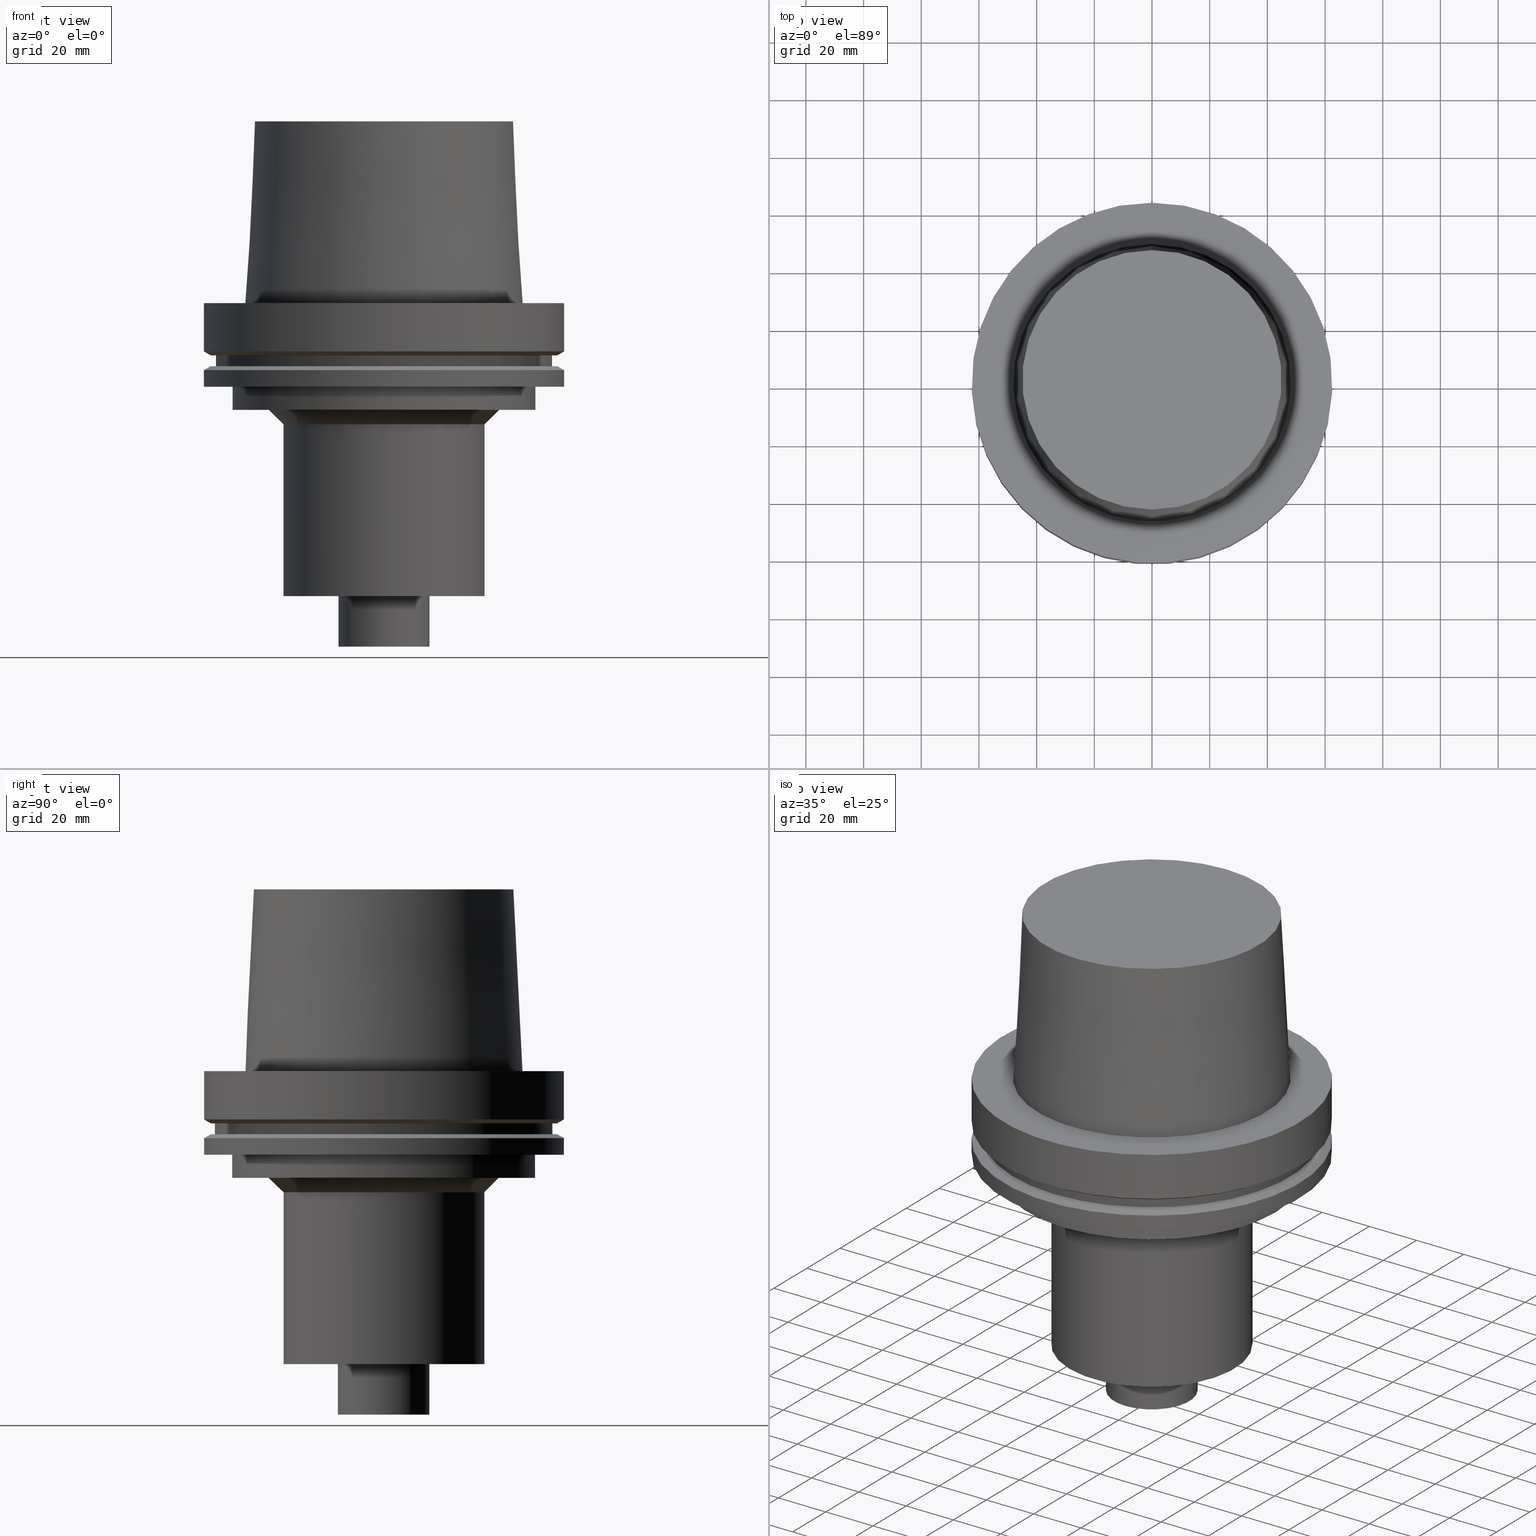
[diagram: canonical four-view strip — front | top / right | iso, engineering-drawing reading convention]
A machine part, canonical four-view strip (front | top / right | iso — engineering-drawing reading convention). The complete STEP part file that produces these views, byte-faithful:
ISO-10303-21;
HEADER;
FILE_DESCRIPTION((''),'1');
FILE_NAME('V:/02_3D_Field-HP\X2\FF71FF6FFF8CFF9F5916\X0\2013/02_Step_Field-HP\X2\FF71FF6FFF8CFF9F5916\X0\2013/HSK-A125-SMC1.250-4.stp','2017-07-11T04:51:26',(''),(''),'Spatial Interop R21 SP3','Kubotek KeyCreator 2011 V10.0.2 (22737)',' ');
FILE_SCHEMA(('automotive_design'));
ENDSEC;
DATA;
#1=MECHANICAL_DESIGN_GEOMETRIC_PRESENTATION_REPRESENTATION(' ',(#10,#11,#12,#13,#14,#15,#16,#17,#18,#19,#20,#21,#22,#23,#24,#25,#26,#27,#28,#29,#30,#31,#32,#33,#34,#35,#36,#37,#38,#39,#40,#41,#42,#43,#44,#45),#6);
#2=PRODUCT_DEFINITION_CONTEXT('',#46,'design');
#3=APPLICATION_PROTOCOL_DEFINITION('INTERNATIONAL STANDARD','automotive_design',1994,#46);
#4=PRODUCT_CATEGORY_RELATIONSHIP('NONE','NONE',#47,#48);
#5=SHAPE_DEFINITION_REPRESENTATION(#49,#50);
#6= (GEOMETRIC_REPRESENTATION_CONTEXT(3)GLOBAL_UNCERTAINTY_ASSIGNED_CONTEXT((#53))GLOBAL_UNIT_ASSIGNED_CONTEXT((#55,#56,#57))REPRESENTATION_CONTEXT('NONE','WORKSPACE'));
#10=STYLED_ITEM('',(#59,#60),#61);
#11=STYLED_ITEM('',(#62,#63),#64);
#12=STYLED_ITEM('',(#65,#66),#67);
#13=STYLED_ITEM('',(#68),#69);
#14=STYLED_ITEM('',(#70),#71);
#15=STYLED_ITEM('',(#72),#73);
#16=STYLED_ITEM('',(#74,#75),#76);
#17=STYLED_ITEM('',(#77),#78);
#18=STYLED_ITEM('',(#79,#80),#81);
#19=STYLED_ITEM('',(#82,#83),#84);
#20=STYLED_ITEM('',(#85),#86);
#21=STYLED_ITEM('',(#87),#88);
#22=STYLED_ITEM('',(#89,#90),#91);
#23=STYLED_ITEM('',(#92,#93),#94);
#24=STYLED_ITEM('',(#95),#96);
#25=STYLED_ITEM('',(#97),#98);
#26=STYLED_ITEM('',(#99),#100);
#27=STYLED_ITEM('',(#101,#102),#103);
#28=STYLED_ITEM('',(#104),#105);
#29=STYLED_ITEM('',(#106,#107),#108);
#30=STYLED_ITEM('',(#109,#110),#111);
#31=STYLED_ITEM('',(#112,#113),#114);
#32=STYLED_ITEM('',(#115),#116);
#33=STYLED_ITEM('',(#117),#118);
#34=STYLED_ITEM('',(#119),#120);
#35=STYLED_ITEM('',(#121,#122),#123);
#36=STYLED_ITEM('',(#124,#125),#126);
#37=STYLED_ITEM('',(#127,#128),#129);
#38=STYLED_ITEM('',(#130,#131),#132);
#39=STYLED_ITEM('',(#133,#134),#135);
#40=STYLED_ITEM('',(#136,#137),#138);
#41=STYLED_ITEM('',(#139),#140);
#42=STYLED_ITEM('',(#141),#142);
#43=STYLED_ITEM('',(#143),#144);
#44=STYLED_ITEM('',(#145),#146);
#45=STYLED_ITEM('',(#147,#148),#149);
#46=APPLICATION_CONTEXT(' ');
#47=PRODUCT_CATEGORY('part','NONE');
#48=PRODUCT_RELATED_PRODUCT_CATEGORY('detail',' ',(#150));
#49=PRODUCT_DEFINITION_SHAPE('NONE','NONE',#151);
#50=ADVANCED_BREP_SHAPE_REPRESENTATION('Unnamed[1]',(#64,#152),#6);
#53=UNCERTAINTY_MEASURE_WITH_UNIT(LENGTH_MEASURE(1.0E-006),#55,'','');
#55= (CONVERSION_BASED_UNIT('MILLIMETRE',#155)LENGTH_UNIT()NAMED_UNIT(#158));
#56= (NAMED_UNIT(#160)PLANE_ANGLE_UNIT()SI_UNIT($,.RADIAN.));
#57= (NAMED_UNIT(#160)SOLID_ANGLE_UNIT()SI_UNIT($,.STERADIAN.));
#59=PRESENTATION_STYLE_ASSIGNMENT((#166));
#60=PRESENTATION_STYLE_ASSIGNMENT((#167));
#61=ADVANCED_FACE('Unnamed[1]',(#168,#169),#170,.T.);
#62=PRESENTATION_STYLE_ASSIGNMENT((#171));
#63=PRESENTATION_STYLE_ASSIGNMENT((#172));
#64=MANIFOLD_SOLID_BREP('Unnamed[1]',#173);
#65=PRESENTATION_STYLE_ASSIGNMENT((#174));
#66=PRESENTATION_STYLE_ASSIGNMENT((#175));
#67=ADVANCED_FACE('Unnamed[1]',(#176,#177),#178,.T.);
#68=PRESENTATION_STYLE_ASSIGNMENT((#179));
#69=EDGE_CURVE('Unnamed[1]',#180,#180,#181,.T.);
#70=PRESENTATION_STYLE_ASSIGNMENT((#182));
#71=EDGE_CURVE('Unnamed[1]',#183,#183,#184,.T.);
#72=PRESENTATION_STYLE_ASSIGNMENT((#185));
#73=EDGE_CURVE('Unnamed[1]',#186,#186,#187,.T.);
#74=PRESENTATION_STYLE_ASSIGNMENT((#188));
#75=PRESENTATION_STYLE_ASSIGNMENT((#189));
#76=ADVANCED_FACE('Unnamed[1]',(#190,#191),#192,.T.);
#77=PRESENTATION_STYLE_ASSIGNMENT((#193));
#78=EDGE_CURVE('Unnamed[1]',#194,#194,#195,.T.);
#79=PRESENTATION_STYLE_ASSIGNMENT((#196));
#80=PRESENTATION_STYLE_ASSIGNMENT((#197));
#81=ADVANCED_FACE('Unnamed[1]',(#198,#199),#200,.T.);
#82=PRESENTATION_STYLE_ASSIGNMENT((#201));
#83=PRESENTATION_STYLE_ASSIGNMENT((#202));
#84=ADVANCED_FACE('Unnamed[1]',(#203,#204),#205,.T.);
#85=PRESENTATION_STYLE_ASSIGNMENT((#206));
#86=EDGE_CURVE('Unnamed[1]',#207,#207,#208,.T.);
#87=PRESENTATION_STYLE_ASSIGNMENT((#209));
#88=EDGE_CURVE('Unnamed[1]',#210,#210,#211,.T.);
#89=PRESENTATION_STYLE_ASSIGNMENT((#212));
#90=PRESENTATION_STYLE_ASSIGNMENT((#213));
#91=ADVANCED_FACE('Unnamed[1]',(#214,#215),#216,.T.);
#92=PRESENTATION_STYLE_ASSIGNMENT((#217));
#93=PRESENTATION_STYLE_ASSIGNMENT((#218));
#94=ADVANCED_FACE('Unnamed[1]',(#219,#220),#221,.T.);
#95=PRESENTATION_STYLE_ASSIGNMENT((#222));
#96=EDGE_CURVE('Unnamed[1]',#223,#223,#224,.T.);
#97=PRESENTATION_STYLE_ASSIGNMENT((#225));
#98=EDGE_CURVE('Unnamed[1]',#226,#226,#227,.T.);
#99=PRESENTATION_STYLE_ASSIGNMENT((#228));
#100=EDGE_CURVE('Unnamed[1]',#229,#229,#230,.T.);
#101=PRESENTATION_STYLE_ASSIGNMENT((#231));
#102=PRESENTATION_STYLE_ASSIGNMENT((#232));
#103=ADVANCED_FACE('Unnamed[1]',(#233),#234,.T.);
#104=PRESENTATION_STYLE_ASSIGNMENT((#235));
#105=EDGE_CURVE('Unnamed[1]',#236,#236,#237,.T.);
#106=PRESENTATION_STYLE_ASSIGNMENT((#238));
#107=PRESENTATION_STYLE_ASSIGNMENT((#239));
#108=ADVANCED_FACE('Unnamed[1]',(#240,#241),#242,.T.);
#109=PRESENTATION_STYLE_ASSIGNMENT((#243));
#110=PRESENTATION_STYLE_ASSIGNMENT((#244));
#111=ADVANCED_FACE('Unnamed[1]',(#245),#246,.T.);
#112=PRESENTATION_STYLE_ASSIGNMENT((#247));
#113=PRESENTATION_STYLE_ASSIGNMENT((#248));
#114=ADVANCED_FACE('Unnamed[1]',(#249,#250),#251,.T.);
#115=PRESENTATION_STYLE_ASSIGNMENT((#252));
#116=EDGE_CURVE('Unnamed[1]',#253,#253,#254,.T.);
#117=PRESENTATION_STYLE_ASSIGNMENT((#255));
#118=EDGE_CURVE('Unnamed[1]',#256,#256,#257,.T.);
#119=PRESENTATION_STYLE_ASSIGNMENT((#258));
#120=EDGE_CURVE('Unnamed[1]',#259,#259,#260,.T.);
#121=PRESENTATION_STYLE_ASSIGNMENT((#261));
#122=PRESENTATION_STYLE_ASSIGNMENT((#262));
#123=ADVANCED_FACE('Unnamed[1]',(#263,#264),#265,.T.);
#124=PRESENTATION_STYLE_ASSIGNMENT((#266));
#125=PRESENTATION_STYLE_ASSIGNMENT((#267));
#126=ADVANCED_FACE('Unnamed[1]',(#268,#269),#270,.T.);
#127=PRESENTATION_STYLE_ASSIGNMENT((#271));
#128=PRESENTATION_STYLE_ASSIGNMENT((#272));
#129=ADVANCED_FACE('Unnamed[1]',(#273,#274),#275,.T.);
#130=PRESENTATION_STYLE_ASSIGNMENT((#276));
#131=PRESENTATION_STYLE_ASSIGNMENT((#277));
#132=ADVANCED_FACE('Unnamed[1]',(#278,#279),#280,.T.);
#133=PRESENTATION_STYLE_ASSIGNMENT((#281));
#134=PRESENTATION_STYLE_ASSIGNMENT((#282));
#135=ADVANCED_FACE('Unnamed[1]',(#283,#284),#285,.T.);
#136=PRESENTATION_STYLE_ASSIGNMENT((#286));
#137=PRESENTATION_STYLE_ASSIGNMENT((#287));
#138=ADVANCED_FACE('Unnamed[1]',(#288,#289),#290,.T.);
#139=PRESENTATION_STYLE_ASSIGNMENT((#291));
#140=EDGE_CURVE('Unnamed[1]',#292,#292,#293,.T.);
#141=PRESENTATION_STYLE_ASSIGNMENT((#294));
#142=EDGE_CURVE('Unnamed[1]',#295,#295,#296,.T.);
#143=PRESENTATION_STYLE_ASSIGNMENT((#297));
#144=EDGE_CURVE('Unnamed[1]',#298,#298,#299,.T.);
#145=PRESENTATION_STYLE_ASSIGNMENT((#300));
#146=EDGE_CURVE('Unnamed[1]',#301,#301,#302,.T.);
#147=PRESENTATION_STYLE_ASSIGNMENT((#303));
#148=PRESENTATION_STYLE_ASSIGNMENT((#304));
#149=ADVANCED_FACE('Unnamed[1]',(#305,#306),#307,.T.);
#150=PRODUCT('Unnamed[1]','Unnamed[1]','PART-Unnamed[1]-DESC',(#308));
#151=PRODUCT_DEFINITION('NONE','NONE',#309,#2);
#152=AXIS2_PLACEMENT_3D('',#310,#311,#312);
#155=LENGTH_MEASURE_WITH_UNIT(LENGTH_MEASURE(1.0),#313);
#158=DIMENSIONAL_EXPONENTS(1.0,0.0,0.0,0.0,0.0,0.0,0.0);
#160=DIMENSIONAL_EXPONENTS(0.0,0.0,0.0,0.0,0.0,0.0,0.0);
#166=SURFACE_STYLE_USAGE(.BOTH.,#314);
#167=CURVE_STYLE('',#315,POSITIVE_LENGTH_MEASURE(1000.0),#316);
#168=FACE_BOUND('',#317,.T.);
#169=FACE_BOUND('',#318,.T.);
#170=CONICAL_SURFACE('',#319,37.4249999999999,0.78539816339748);
#171=SURFACE_STYLE_USAGE(.BOTH.,#320);
#172=CURVE_STYLE('',#321,POSITIVE_LENGTH_MEASURE(1000.0),#322);
#173=CLOSED_SHELL('',(#111,#123,#149,#126,#129,#114,#94,#132,#138,#108,#91,#81,#76,#61,#135,#84,#67,#103));
#174=SURFACE_STYLE_USAGE(.BOTH.,#323);
#175=CURVE_STYLE('',#324,POSITIVE_LENGTH_MEASURE(1000.0),#325);
#176=FACE_BOUND('',#326,.T.);
#177=FACE_BOUND('',#327,.T.);
#178=CYLINDRICAL_SURFACE('',#328,15.8749999999998);
#179=CURVE_STYLE('',#329,POSITIVE_LENGTH_MEASURE(1000.0),#330);
#180=VERTEX_POINT('',#331);
#181=CIRCLE('',#332,58.4999999999998);
#182=CURVE_STYLE('',#333,POSITIVE_LENGTH_MEASURE(1000.0),#334);
#183=VERTEX_POINT('',#335);
#184=CIRCLE('',#336,60.1225952641912);
#185=CURVE_STYLE('',#337,POSITIVE_LENGTH_MEASURE(1000.0),#338);
#186=VERTEX_POINT('',#339);
#187=CIRCLE('',#340,62.5);
#188=SURFACE_STYLE_USAGE(.BOTH.,#341);
#189=CURVE_STYLE('',#342,POSITIVE_LENGTH_MEASURE(1000.0),#343);
#190=FACE_BOUND('',#344,.T.);
#191=FACE_OUTER_BOUND('',#345,.T.);
#192=PLANE('',#346);
#193=CURVE_STYLE('',#347,POSITIVE_LENGTH_MEASURE(1000.0),#348);
#194=VERTEX_POINT('',#349);
#195=CIRCLE('',#350,60.122595264194);
#196=SURFACE_STYLE_USAGE(.BOTH.,#351);
#197=CURVE_STYLE('',#352,POSITIVE_LENGTH_MEASURE(1000.0),#353);
#198=FACE_BOUND('',#354,.T.);
#199=FACE_BOUND('',#355,.T.);
#200=CYLINDRICAL_SURFACE('',#356,52.5);
#201=SURFACE_STYLE_USAGE(.BOTH.,#357);
#202=CURVE_STYLE('',#358,POSITIVE_LENGTH_MEASURE(1000.0),#359);
#203=FACE_BOUND('',#360,.T.);
#204=FACE_OUTER_BOUND('',#361,.T.);
#205=PLANE('',#362);
#206=CURVE_STYLE('',#363,POSITIVE_LENGTH_MEASURE(1000.0),#364);
#207=VERTEX_POINT('',#365);
#208=CIRCLE('',#366,44.9779398797591);
#209=CURVE_STYLE('',#367,POSITIVE_LENGTH_MEASURE(1000.0),#368);
#210=VERTEX_POINT('',#369);
#211=CIRCLE('',#370,62.5000000000002);
#212=SURFACE_STYLE_USAGE(.BOTH.,#371);
#213=CURVE_STYLE('',#372,POSITIVE_LENGTH_MEASURE(1000.0),#373);
#214=FACE_BOUND('',#374,.T.);
#215=FACE_OUTER_BOUND('',#375,.T.);
#216=PLANE('',#376);
#217=SURFACE_STYLE_USAGE(.BOTH.,#377);
#218=CURVE_STYLE('',#378,POSITIVE_LENGTH_MEASURE(1000.0),#379);
#219=FACE_BOUND('',#380,.T.);
#220=FACE_BOUND('',#381,.T.);
#221=CYLINDRICAL_SURFACE('',#382,58.4999999999999);
#222=CURVE_STYLE('',#383,POSITIVE_LENGTH_MEASURE(1000.0),#384);
#223=VERTEX_POINT('',#385);
#224=CIRCLE('',#386,52.4999999999998);
#225=CURVE_STYLE('',#387,POSITIVE_LENGTH_MEASURE(1000.0),#388);
#226=VERTEX_POINT('',#389);
#227=CIRCLE('',#390,58.5);
#228=CURVE_STYLE('',#391,POSITIVE_LENGTH_MEASURE(1000.0),#392);
#229=VERTEX_POINT('',#393);
#230=CIRCLE('',#394,39.9249999999999);
#231=SURFACE_STYLE_USAGE(.BOTH.,#395);
#232=CURVE_STYLE('',#396,POSITIVE_LENGTH_MEASURE(1000.0),#397);
#233=FACE_OUTER_BOUND('',#398,.T.);
#234=PLANE('',#399);
#235=CURVE_STYLE('',#400,POSITIVE_LENGTH_MEASURE(1000.0),#401);
#236=VERTEX_POINT('',#402);
#237=CIRCLE('',#403,15.8749999999997);
#238=SURFACE_STYLE_USAGE(.BOTH.,#404);
#239=CURVE_STYLE('',#405,POSITIVE_LENGTH_MEASURE(1000.0),#406);
#240=FACE_BOUND('',#407,.T.);
#241=FACE_BOUND('',#408,.T.);
#242=CYLINDRICAL_SURFACE('',#409,62.5);
#243=SURFACE_STYLE_USAGE(.BOTH.,#410);
#244=CURVE_STYLE('',#411,POSITIVE_LENGTH_MEASURE(1000.0),#412);
#245=FACE_OUTER_BOUND('',#413,.T.);
#246=PLANE('',#414);
#247=SURFACE_STYLE_USAGE(.BOTH.,#415);
#248=CURVE_STYLE('',#416,POSITIVE_LENGTH_MEASURE(1000.0),#417);
#249=FACE_BOUND('',#418,.T.);
#250=FACE_OUTER_BOUND('',#419,.T.);
#251=PLANE('',#420);
#252=CURVE_STYLE('',#421,POSITIVE_LENGTH_MEASURE(1000.0),#422);
#253=VERTEX_POINT('',#423);
#254=CIRCLE('',#424,48.1342525050097);
#255=CURVE_STYLE('',#425,POSITIVE_LENGTH_MEASURE(1000.0),#426);
#256=VERTEX_POINT('',#427);
#257=CIRCLE('',#428,34.9249999999999);
#258=CURVE_STYLE('',#429,POSITIVE_LENGTH_MEASURE(1000.0),#430);
#259=VERTEX_POINT('',#431);
#260=CIRCLE('',#432,52.5000000000003);
#261=SURFACE_STYLE_USAGE(.BOTH.,#433);
#262=CURVE_STYLE('',#434,POSITIVE_LENGTH_MEASURE(1000.0),#435);
#263=FACE_BOUND('',#436,.T.);
#264=FACE_BOUND('',#437,.T.);
#265=CONICAL_SURFACE('',#438,46.5560961923844,0.0500583457465964);
#266=SURFACE_STYLE_USAGE(.BOTH.,#439);
#267=CURVE_STYLE('',#440,POSITIVE_LENGTH_MEASURE(1000.0),#441);
#268=FACE_BOUND('',#442,.T.);
#269=FACE_BOUND('',#443,.T.);
#270=CYLINDRICAL_SURFACE('',#444,62.5000000000001);
#271=SURFACE_STYLE_USAGE(.BOTH.,#445);
#272=CURVE_STYLE('',#446,POSITIVE_LENGTH_MEASURE(1000.0),#447);
#273=FACE_BOUND('',#448,.T.);
#274=FACE_BOUND('',#449,.T.);
#275=CONICAL_SURFACE('',#450,61.3112976320956,1.04719755119668);
#276=SURFACE_STYLE_USAGE(.BOTH.,#451);
#277=CURVE_STYLE('',#452,POSITIVE_LENGTH_MEASURE(1000.0),#453);
#278=FACE_OUTER_BOUND('',#454,.T.);
#279=FACE_BOUND('',#455,.T.);
#280=PLANE('',#456);
#281=SURFACE_STYLE_USAGE(.BOTH.,#457);
#282=CURVE_STYLE('',#458,POSITIVE_LENGTH_MEASURE(1000.0),#459);
#283=FACE_BOUND('',#460,.T.);
#284=FACE_BOUND('',#461,.T.);
#285=CYLINDRICAL_SURFACE('',#462,34.9249999999999);
#286=SURFACE_STYLE_USAGE(.BOTH.,#463);
#287=CURVE_STYLE('',#464,POSITIVE_LENGTH_MEASURE(1000.0),#465);
#288=FACE_BOUND('',#466,.T.);
#289=FACE_BOUND('',#467,.T.);
#290=CONICAL_SURFACE('',#468,61.311297632097,1.04719755119646);
#291=CURVE_STYLE('',#469,POSITIVE_LENGTH_MEASURE(1000.0),#470);
#292=VERTEX_POINT('',#471);
#293=CIRCLE('',#472,62.5);
#294=CURVE_STYLE('',#473,POSITIVE_LENGTH_MEASURE(1000.0),#474);
#295=VERTEX_POINT('',#475);
#296=CIRCLE('',#476,34.9249999999999);
#297=CURVE_STYLE('',#477,POSITIVE_LENGTH_MEASURE(1000.0),#478);
#298=VERTEX_POINT('',#479);
#299=CIRCLE('',#480,15.8749999999999);
#300=CURVE_STYLE('',#481,POSITIVE_LENGTH_MEASURE(1000.0),#482);
#301=VERTEX_POINT('',#483);
#302=CIRCLE('',#484,62.5);
#303=SURFACE_STYLE_USAGE(.BOTH.,#485);
#304=CURVE_STYLE('',#486,POSITIVE_LENGTH_MEASURE(1000.0),#487);
#305=FACE_OUTER_BOUND('',#488,.T.);
#306=FACE_BOUND('',#489,.T.);
#307=PLANE('',#490);
#308=PRODUCT_CONTEXT('',#46,'mechanical');
#309=PRODUCT_DEFINITION_FORMATION_WITH_SPECIFIED_SOURCE(' ','NONE',#150,.NOT_KNOWN.);
#310=CARTESIAN_POINT('',(0.0,0.0,0.0));
#311=DIRECTION('',(0.0,0.0,1.0));
#312=DIRECTION('',(1.0,0.0,0.0));
#313= (NAMED_UNIT(#158)LENGTH_UNIT()SI_UNIT(.MILLI.,.METRE.));
#314=SURFACE_SIDE_STYLE('',(#492));
#315=DRAUGHTING_PRE_DEFINED_CURVE_FONT('continuous');
#316=COLOUR_RGB('',0.0,1.0,0.0);
#317=EDGE_LOOP('',(#493));
#318=EDGE_LOOP('',(#494));
#319=AXIS2_PLACEMENT_3D('',#495,#496,#497);
#320=SURFACE_SIDE_STYLE('',(#498));
#321=DRAUGHTING_PRE_DEFINED_CURVE_FONT('continuous');
#322=COLOUR_RGB('',0.0,1.0,0.0);
#323=SURFACE_SIDE_STYLE('',(#499));
#324=DRAUGHTING_PRE_DEFINED_CURVE_FONT('continuous');
#325=COLOUR_RGB('',0.0,1.0,0.0);
#326=EDGE_LOOP('',(#500));
#327=EDGE_LOOP('',(#501));
#328=AXIS2_PLACEMENT_3D('',#502,#503,#504);
#329=DRAUGHTING_PRE_DEFINED_CURVE_FONT('continuous');
#330=COLOUR_RGB('',0.0,1.0,0.0);
#331=CARTESIAN_POINT('',(1.33945743656732E-015,58.4999999999998,-21.8749999999984));
#332=AXIS2_PLACEMENT_3D('',#505,#506,#507);
#333=DRAUGHTING_PRE_DEFINED_CURVE_FONT('continuous');
#334=COLOUR_RGB('',0.0,1.0,0.0);
#335=CARTESIAN_POINT('',(1.10983616172729E-015,60.1225952641912,-18.1250000000001));
#336=AXIS2_PLACEMENT_3D('',#508,#509,#510);
#337=DRAUGHTING_PRE_DEFINED_CURVE_FONT('continuous');
#338=COLOUR_RGB('',0.0,1.0,0.0);
#339=CARTESIAN_POINT('',(1.42350465640827E-015,62.5,-23.2475952641916));
#340=AXIS2_PLACEMENT_3D('',#511,#512,#513);
#341=SURFACE_SIDE_STYLE('',(#514));
#342=DRAUGHTING_PRE_DEFINED_CURVE_FONT('continuous');
#343=COLOUR_RGB('',0.0,1.0,0.0);
#344=EDGE_LOOP('',(#515));
#345=EDGE_LOOP('',(#516));
#346=AXIS2_PLACEMENT_3D('',#517,#518,#519);
#347=DRAUGHTING_PRE_DEFINED_CURVE_FONT('continuous');
#348=COLOUR_RGB('',0.0,1.0,0.0);
#349=CARTESIAN_POINT('',(1.33945743656747E-015,60.122595264194,-21.8750000000009));
#350=AXIS2_PLACEMENT_3D('',#520,#521,#522);
#351=SURFACE_SIDE_STYLE('',(#523));
#352=DRAUGHTING_PRE_DEFINED_CURVE_FONT('continuous');
#353=COLOUR_RGB('',0.0,1.0,0.0);
#354=EDGE_LOOP('',(#524));
#355=EDGE_LOOP('',(#525));
#356=AXIS2_PLACEMENT_3D('',#526,#527,#528);
#357=SURFACE_SIDE_STYLE('',(#529));
#358=DRAUGHTING_PRE_DEFINED_CURVE_FONT('continuous');
#359=COLOUR_RGB('',0.0,1.0,0.0);
#360=EDGE_LOOP('',(#530));
#361=EDGE_LOOP('',(#531));
#362=AXIS2_PLACEMENT_3D('',#532,#533,#534);
#363=DRAUGHTING_PRE_DEFINED_CURVE_FONT('continuous');
#364=COLOUR_RGB('',0.0,1.0,0.0);
#365=CARTESIAN_POINT('',(-3.85763741731416E-015,44.9779398797591,62.9999999999999));
#366=AXIS2_PLACEMENT_3D('',#535,#536,#537);
#367=DRAUGHTING_PRE_DEFINED_CURVE_FONT('continuous');
#368=COLOUR_RGB('',0.0,1.0,0.0);
#369=CARTESIAN_POINT('',(-5.58935713239973E-030,62.5000000000002,8.63540424946709E-014));
#370=AXIS2_PLACEMENT_3D('',#538,#539,#540);
#371=SURFACE_SIDE_STYLE('',(#541));
#372=DRAUGHTING_PRE_DEFINED_CURVE_FONT('continuous');
#373=COLOUR_RGB('',0.0,1.0,0.0);
#374=EDGE_LOOP('',(#542));
#375=EDGE_LOOP('',(#543));
#376=AXIS2_PLACEMENT_3D('',#544,#545,#546);
#377=SURFACE_SIDE_STYLE('',(#547));
#378=DRAUGHTING_PRE_DEFINED_CURVE_FONT('continuous');
#379=COLOUR_RGB('',0.0,1.0,0.0);
#380=EDGE_LOOP('',(#548));
#381=EDGE_LOOP('',(#549));
#382=AXIS2_PLACEMENT_3D('',#550,#551,#552);
#383=DRAUGHTING_PRE_DEFINED_CURVE_FONT('continuous');
#384=COLOUR_RGB('',0.0,1.0,0.0);
#385=CARTESIAN_POINT('',(2.26559657842261E-015,52.4999999999998,-37.0000000000001));
#386=AXIS2_PLACEMENT_3D('',#553,#554,#555);
#387=DRAUGHTING_PRE_DEFINED_CURVE_FONT('continuous');
#388=COLOUR_RGB('',0.0,1.0,0.0);
#389=CARTESIAN_POINT('',(1.10983616172739E-015,58.5,-18.1250000000017));
#390=AXIS2_PLACEMENT_3D('',#556,#557,#558);
#391=DRAUGHTING_PRE_DEFINED_CURVE_FONT('continuous');
#392=COLOUR_RGB('',0.0,1.0,0.0);
#393=CARTESIAN_POINT('',(2.26559657842262E-015,39.9249999999999,-37.0000000000002));
#394=AXIS2_PLACEMENT_3D('',#559,#560,#561);
#395=SURFACE_SIDE_STYLE('',(#562));
#396=DRAUGHTING_PRE_DEFINED_CURVE_FONT('continuous');
#397=COLOUR_RGB('',0.0,1.0,0.0);
#398=EDGE_LOOP('',(#563));
#399=AXIS2_PLACEMENT_3D('',#564,#565,#566);
#400=DRAUGHTING_PRE_DEFINED_CURVE_FONT('continuous');
#401=COLOUR_RGB('',0.0,1.0,0.0);
#402=CARTESIAN_POINT('',(7.29277168892246E-015,15.8749999999997,-119.1));
#403=AXIS2_PLACEMENT_3D('',#567,#568,#569);
#404=SURFACE_SIDE_STYLE('',(#570));
#405=DRAUGHTING_PRE_DEFINED_CURVE_FONT('continuous');
#406=COLOUR_RGB('',0.0,1.0,0.0);
#407=EDGE_LOOP('',(#571));
#408=EDGE_LOOP('',(#572));
#409=AXIS2_PLACEMENT_3D('',#573,#574,#575);
#410=SURFACE_SIDE_STYLE('',(#576));
#411=DRAUGHTING_PRE_DEFINED_CURVE_FONT('continuous');
#412=COLOUR_RGB('',0.0,1.0,0.0);
#413=EDGE_LOOP('',(#577));
#414=AXIS2_PLACEMENT_3D('',#578,#579,#580);
#415=SURFACE_SIDE_STYLE('',(#581));
#416=DRAUGHTING_PRE_DEFINED_CURVE_FONT('continuous');
#417=COLOUR_RGB('',0.0,1.0,0.0);
#418=EDGE_LOOP('',(#582));
#419=EDGE_LOOP('',(#583));
#420=AXIS2_PLACEMENT_3D('',#584,#585,#586);
#421=DRAUGHTING_PRE_DEFINED_CURVE_FONT('continuous');
#422=COLOUR_RGB('',0.0,1.0,0.0);
#423=CARTESIAN_POINT('',(3.88342032297484E-029,48.1342525050097,-6.38005254174039E-013));
#424=AXIS2_PLACEMENT_3D('',#587,#588,#589);
#425=DRAUGHTING_PRE_DEFINED_CURVE_FONT('continuous');
#426=COLOUR_RGB('',0.0,1.0,0.0);
#427=CARTESIAN_POINT('',(2.57175827820943E-015,34.9249999999999,-41.9999999999999));
#428=AXIS2_PLACEMENT_3D('',#590,#591,#592);
#429=DRAUGHTING_PRE_DEFINED_CURVE_FONT('continuous');
#430=COLOUR_RGB('',0.0,1.0,0.0);
#431=CARTESIAN_POINT('',(1.77573785876367E-015,52.5000000000003,-29.0000000000001));
#432=AXIS2_PLACEMENT_3D('',#593,#594,#595);
#433=SURFACE_SIDE_STYLE('',(#596));
#434=DRAUGHTING_PRE_DEFINED_CURVE_FONT('continuous');
#435=COLOUR_RGB('',0.0,1.0,0.0);
#436=EDGE_LOOP('',(#597));
#437=EDGE_LOOP('',(#598));
#438=AXIS2_PLACEMENT_3D('',#599,#600,#601);
#439=SURFACE_SIDE_STYLE('',(#602));
#440=DRAUGHTING_PRE_DEFINED_CURVE_FONT('continuous');
#441=COLOUR_RGB('',0.0,1.0,0.0);
#442=EDGE_LOOP('',(#603));
#443=EDGE_LOOP('',(#604));
#444=AXIS2_PLACEMENT_3D('',#605,#606,#607);
#445=SURFACE_SIDE_STYLE('',(#608));
#446=DRAUGHTING_PRE_DEFINED_CURVE_FONT('continuous');
#447=COLOUR_RGB('',0.0,1.0,0.0);
#448=EDGE_LOOP('',(#609));
#449=EDGE_LOOP('',(#610));
#450=AXIS2_PLACEMENT_3D('',#611,#612,#613);
#451=SURFACE_SIDE_STYLE('',(#614));
#452=DRAUGHTING_PRE_DEFINED_CURVE_FONT('continuous');
#453=COLOUR_RGB('',0.0,1.0,0.0);
#454=EDGE_LOOP('',(#615));
#455=EDGE_LOOP('',(#616));
#456=AXIS2_PLACEMENT_3D('',#617,#618,#619);
#457=SURFACE_SIDE_STYLE('',(#620));
#458=DRAUGHTING_PRE_DEFINED_CURVE_FONT('continuous');
#459=COLOUR_RGB('',0.0,1.0,0.0);
#460=EDGE_LOOP('',(#621));
#461=EDGE_LOOP('',(#622));
#462=AXIS2_PLACEMENT_3D('',#623,#624,#625);
#463=SURFACE_SIDE_STYLE('',(#626));
#464=DRAUGHTING_PRE_DEFINED_CURVE_FONT('continuous');
#465=COLOUR_RGB('',0.0,1.0,0.0);
#466=EDGE_LOOP('',(#627));
#467=EDGE_LOOP('',(#628));
#468=AXIS2_PLACEMENT_3D('',#629,#630,#631);
#469=DRAUGHTING_PRE_DEFINED_CURVE_FONT('continuous');
#470=COLOUR_RGB('',0.0,1.0,0.0);
#471=CARTESIAN_POINT('',(1.02578894188644E-015,62.5,-16.7524047358084));
#472=AXIS2_PLACEMENT_3D('',#632,#633,#634);
#473=DRAUGHTING_PRE_DEFINED_CURVE_FONT('continuous');
#474=COLOUR_RGB('',0.0,1.0,0.0);
#475=CARTESIAN_POINT('',(6.22120573966852E-015,34.9249999999999,-101.6));
#476=AXIS2_PLACEMENT_3D('',#635,#636,#637);
#477=DRAUGHTING_PRE_DEFINED_CURVE_FONT('continuous');
#478=COLOUR_RGB('',0.0,1.0,0.0);
#479=CARTESIAN_POINT('',(6.22120573966855E-015,15.8749999999999,-101.6));
#480=AXIS2_PLACEMENT_3D('',#638,#639,#640);
#481=DRAUGHTING_PRE_DEFINED_CURVE_FONT('continuous');
#482=COLOUR_RGB('',0.0,1.0,0.0);
#483=CARTESIAN_POINT('',(1.77573785876367E-015,62.5,-29.0000000000001));
#484=AXIS2_PLACEMENT_3D('',#641,#642,#643);
#485=SURFACE_SIDE_STYLE('',(#644));
#486=DRAUGHTING_PRE_DEFINED_CURVE_FONT('continuous');
#487=COLOUR_RGB('',0.0,1.0,0.0);
#488=EDGE_LOOP('',(#645));
#489=EDGE_LOOP('',(#646));
#490=AXIS2_PLACEMENT_3D('',#647,#648,#649);
#492=SURFACE_STYLE_FILL_AREA(#650);
#493=ORIENTED_EDGE('',*,*,#118,.F.);
#494=ORIENTED_EDGE('',*,*,#100,.T.);
#495=CARTESIAN_POINT('',(2.41867742831603E-015,4.83735485663205E-015,-39.5));
#496=DIRECTION('',(-6.12323399573677E-017,-1.22464679914735E-016,1.0));
#497=DIRECTION('',(-1.23259516440783E-032,1.0,1.22464679914735E-016));
#498=SURFACE_STYLE_FILL_AREA(#651);
#499=SURFACE_STYLE_FILL_AREA(#652);
#500=ORIENTED_EDGE('',*,*,#105,.F.);
#501=ORIENTED_EDGE('',*,*,#144,.T.);
#502=CARTESIAN_POINT('',(6.7569887142955E-015,1.3513977428591E-014,-110.35));
#503=DIRECTION('',(6.12323399573677E-017,1.22464679914735E-016,-1.0));
#504=DIRECTION('',(-1.23259516440783E-032,1.0,1.22464679914735E-016));
#505=CARTESIAN_POINT('',(1.33945743656732E-015,2.67891487313464E-015,-21.8749999999984));
#506=DIRECTION('',(6.12323399573677E-017,1.22464679914735E-016,-1.0));
#507=DIRECTION('',(-1.23259516440783E-032,1.0,1.22464679914735E-016));
#508=CARTESIAN_POINT('',(1.10983616172729E-015,2.21967232345459E-015,-18.1250000000001));
#509=DIRECTION('',(6.12323399573677E-017,1.22464679914735E-016,-1.0));
#510=DIRECTION('',(-1.23259516440783E-032,1.0,1.22464679914735E-016));
#511=CARTESIAN_POINT('',(1.42350465640827E-015,2.84700931281654E-015,-23.2475952641916));
#512=DIRECTION('',(6.12323399573677E-017,1.22464679914735E-016,-1.0));
#513=DIRECTION('',(-1.23259516440783E-032,1.0,1.22464679914735E-016));
#514=SURFACE_STYLE_FILL_AREA(#653);
#515=ORIENTED_EDGE('',*,*,#100,.F.);
#516=ORIENTED_EDGE('',*,*,#96,.T.);
#517=CARTESIAN_POINT('',(2.26559657842261E-015,46.2124999999998,-37.0000000000001));
#518=DIRECTION('',(6.12323399573677E-017,1.08582992560118E-014,-1.0));
#519=DIRECTION('',(-6.69706224133716E-031,1.0,1.08582992560118E-014));
#520=CARTESIAN_POINT('',(1.33945743656747E-015,2.67891487313494E-015,-21.8750000000009));
#521=DIRECTION('',(6.12323399573677E-017,1.22464679914735E-016,-1.0));
#522=DIRECTION('',(-1.23259516440783E-032,1.0,1.22464679914735E-016));
#523=SURFACE_STYLE_FILL_AREA(#654);
#524=ORIENTED_EDGE('',*,*,#96,.F.);
#525=ORIENTED_EDGE('',*,*,#120,.T.);
#526=CARTESIAN_POINT('',(2.02066721859314E-015,4.04133443718627E-015,-33.0000000000001));
#527=DIRECTION('',(6.12323399573677E-017,1.22464679914735E-016,-1.0));
#528=DIRECTION('',(-1.23259516440783E-032,1.0,1.22464679914735E-016));
#529=SURFACE_STYLE_FILL_AREA(#655);
#530=ORIENTED_EDGE('',*,*,#144,.F.);
#531=ORIENTED_EDGE('',*,*,#142,.T.);
#532=CARTESIAN_POINT('',(6.22120573966854E-015,25.3999999999999,-101.6));
#533=DIRECTION('',(6.12323399573677E-017,2.10098101930725E-014,-1.0));
#534=DIRECTION('',(-1.29130699291275E-030,1.0,2.10098101930725E-014));
#535=CARTESIAN_POINT('',(-3.85763741731416E-015,-7.71527483462831E-015,62.9999999999999));
#536=DIRECTION('',(6.12323399573677E-017,1.22464679914735E-016,-1.0));
#537=DIRECTION('',(-1.23259516440783E-032,1.0,1.22464679914735E-016));
#538=CARTESIAN_POINT('',(-5.22098332203606E-030,-1.04419666440721E-029,8.5265128291212E-014));
#539=DIRECTION('',(6.12323399573677E-017,1.22464679914735E-016,-1.0));
#540=DIRECTION('',(-1.23259516440783E-032,1.0,1.22464679914735E-016));
#541=SURFACE_STYLE_FILL_AREA(#656);
#542=ORIENTED_EDGE('',*,*,#120,.F.);
#543=ORIENTED_EDGE('',*,*,#146,.T.);
#544=CARTESIAN_POINT('',(1.77573785876367E-015,57.5000000000002,-29.0000000000001));
#545=DIRECTION('',(6.12323399573677E-017,1.22464679914735E-016,-1.0));
#546=DIRECTION('',(-1.23259516440783E-032,1.0,1.22464679914735E-016));
#547=SURFACE_STYLE_FILL_AREA(#657);
#548=ORIENTED_EDGE('',*,*,#69,.F.);
#549=ORIENTED_EDGE('',*,*,#98,.T.);
#550=CARTESIAN_POINT('',(1.22464679914736E-015,2.44929359829471E-015,-20.0));
#551=DIRECTION('',(6.12323399573677E-017,1.22464679914735E-016,-1.0));
#552=DIRECTION('',(-1.23259516440783E-032,1.0,1.22464679914735E-016));
#553=CARTESIAN_POINT('',(2.26559657842261E-015,4.53119315684521E-015,-37.0000000000001));
#554=DIRECTION('',(6.12323399573677E-017,1.22464679914735E-016,-1.0));
#555=DIRECTION('',(-1.23259516440783E-032,1.0,1.22464679914735E-016));
#556=CARTESIAN_POINT('',(1.10983616172739E-015,2.21967232345478E-015,-18.1250000000017));
#557=DIRECTION('',(6.12323399573677E-017,1.22464679914735E-016,-1.0));
#558=DIRECTION('',(-1.23259516440783E-032,1.0,1.22464679914735E-016));
#559=CARTESIAN_POINT('',(2.26559657842262E-015,4.53119315684523E-015,-37.0000000000002));
#560=DIRECTION('',(6.12323399573676E-017,1.22464679914735E-016,-1.0));
#561=DIRECTION('',(-1.23259516440783E-032,1.0,1.22464679914735E-016));
#562=SURFACE_STYLE_FILL_AREA(#658);
#563=ORIENTED_EDGE('',*,*,#105,.T.);
#564=CARTESIAN_POINT('',(7.29277168892246E-015,7.93749999999988,-119.1));
#565=DIRECTION('',(6.12323399573677E-017,1.22464679914735E-016,-1.0));
#566=DIRECTION('',(-1.23259516440783E-032,1.0,1.22464679914735E-016));
#567=CARTESIAN_POINT('',(7.29277168892246E-015,1.45855433778449E-014,-119.1));
#568=DIRECTION('',(6.12323399573677E-017,1.22464679914735E-016,-1.0));
#569=DIRECTION('',(-1.23259516440783E-032,1.0,1.22464679914735E-016));
#570=SURFACE_STYLE_FILL_AREA(#659);
#571=ORIENTED_EDGE('',*,*,#146,.F.);
#572=ORIENTED_EDGE('',*,*,#73,.T.);
#573=CARTESIAN_POINT('',(1.59962125758597E-015,3.19924251517194E-015,-26.1237976320958));
#574=DIRECTION('',(6.12323399573677E-017,1.22464679914735E-016,-1.0));
#575=DIRECTION('',(-1.23259516440783E-032,1.0,1.22464679914735E-016));
#576=SURFACE_STYLE_FILL_AREA(#660);
#577=ORIENTED_EDGE('',*,*,#86,.F.);
#578=CARTESIAN_POINT('',(-3.85763741731416E-015,22.4889699398795,62.9999999999999));
#579=DIRECTION('',(-6.12323399573677E-017,-1.22464679914735E-016,1.0));
#580=DIRECTION('',(1.23259516440783E-032,-1.0,-1.22464679914735E-016));
#581=SURFACE_STYLE_FILL_AREA(#661);
#582=ORIENTED_EDGE('',*,*,#98,.F.);
#583=ORIENTED_EDGE('',*,*,#71,.T.);
#584=CARTESIAN_POINT('',(1.10983616172734E-015,59.3112976320956,-18.1250000000009));
#585=DIRECTION('',(6.12323399573677E-017,9.85408931824386E-013,-1.0));
#586=DIRECTION('',(-6.03437218632281E-029,1.0,9.85408931824386E-013));
#587=CARTESIAN_POINT('',(3.91573749152705E-029,7.83147498305409E-029,-6.3948846218409E-013));
#588=DIRECTION('',(6.12323399573677E-017,1.22464679914735E-016,-1.0));
#589=DIRECTION('',(-1.23259516440783E-032,1.0,1.22464679914735E-016));
#590=CARTESIAN_POINT('',(2.57175827820943E-015,5.14351655641887E-015,-41.9999999999999));
#591=DIRECTION('',(6.12323399573677E-017,1.22464679914735E-016,-1.0));
#592=DIRECTION('',(-1.23259516440783E-032,1.0,1.22464679914735E-016));
#593=CARTESIAN_POINT('',(1.77573785876367E-015,3.55147571752733E-015,-29.0000000000001));
#594=DIRECTION('',(6.12323399573677E-017,1.22464679914735E-016,-1.0));
#595=DIRECTION('',(-1.23259516440783E-032,1.0,1.22464679914735E-016));
#596=SURFACE_STYLE_FILL_AREA(#662);
#597=ORIENTED_EDGE('',*,*,#116,.F.);
#598=ORIENTED_EDGE('',*,*,#86,.T.);
#599=CARTESIAN_POINT('',(-1.92881870865706E-015,-3.85763741731411E-015,31.4999999999996));
#600=DIRECTION('',(6.12323399573676E-017,1.22464679914735E-016,-1.0));
#601=DIRECTION('',(-1.23259516440783E-032,1.0,1.22464679914735E-016));
#602=SURFACE_STYLE_FILL_AREA(#663);
#603=ORIENTED_EDGE('',*,*,#140,.F.);
#604=ORIENTED_EDGE('',*,*,#88,.T.);
#605=CARTESIAN_POINT('',(5.12894470943215E-016,1.02578894188643E-015,-8.37620236790416));
#606=DIRECTION('',(6.12323399573677E-017,1.22464679914735E-016,-1.0));
#607=DIRECTION('',(-1.23259516440783E-032,1.0,1.22464679914735E-016));
#608=SURFACE_STYLE_FILL_AREA(#664);
#609=ORIENTED_EDGE('',*,*,#71,.F.);
#610=ORIENTED_EDGE('',*,*,#140,.T.);
#611=CARTESIAN_POINT('',(1.06781255180686E-015,2.13562510361373E-015,-17.4387023679042));
#612=DIRECTION('',(-6.12323399573676E-017,-1.22464679914735E-016,1.0));
#613=DIRECTION('',(-1.23259516440783E-032,1.0,1.22464679914735E-016));
#614=SURFACE_STYLE_FILL_AREA(#665);
#615=ORIENTED_EDGE('',*,*,#78,.F.);
#616=ORIENTED_EDGE('',*,*,#69,.T.);
#617=CARTESIAN_POINT('',(1.33945743656739E-015,59.3112976320969,-21.8749999999996));
#618=DIRECTION('',(-6.12323399573677E-017,1.54130347502767E-012,1.0));
#619=DIRECTION('',(-9.43727912076354E-029,-1.0,1.54130347502767E-012));
#620=SURFACE_STYLE_FILL_AREA(#666);
#621=ORIENTED_EDGE('',*,*,#142,.F.);
#622=ORIENTED_EDGE('',*,*,#118,.T.);
#623=CARTESIAN_POINT('',(4.39648200893898E-015,8.79296401787796E-015,-71.7999999999997));
#624=DIRECTION('',(6.12323399573677E-017,1.22464679914735E-016,-1.0));
#625=DIRECTION('',(-1.23259516440783E-032,1.0,1.22464679914735E-016));
#626=SURFACE_STYLE_FILL_AREA(#667);
#627=ORIENTED_EDGE('',*,*,#73,.F.);
#628=ORIENTED_EDGE('',*,*,#78,.T.);
#629=CARTESIAN_POINT('',(1.38148104648787E-015,2.76296209297574E-015,-22.5612976320962));
#630=DIRECTION('',(6.12323399573677E-017,1.22464679914735E-016,-1.0));
#631=DIRECTION('',(-1.23259516440783E-032,1.0,1.22464679914735E-016));
#632=CARTESIAN_POINT('',(1.02578894188644E-015,2.05157788377287E-015,-16.7524047358084));
#633=DIRECTION('',(6.12323399573676E-017,1.22464679914735E-016,-1.0));
#634=DIRECTION('',(-1.23259516440783E-032,1.0,1.22464679914735E-016));
#635=CARTESIAN_POINT('',(6.22120573966852E-015,1.2442411479337E-014,-101.6));
#636=DIRECTION('',(6.12323399573677E-017,1.22464679914735E-016,-1.0));
#637=DIRECTION('',(-1.23259516440783E-032,1.0,1.22464679914735E-016));
#638=CARTESIAN_POINT('',(6.22120573966855E-015,1.24424114793371E-014,-101.6));
#639=DIRECTION('',(6.12323399573677E-017,1.22464679914735E-016,-1.0));
#640=DIRECTION('',(-1.23259516440783E-032,1.0,1.22464679914735E-016));
#641=CARTESIAN_POINT('',(1.77573785876367E-015,3.55147571752733E-015,-29.0000000000001));
#642=DIRECTION('',(6.12323399573677E-017,1.22464679914735E-016,-1.0));
#643=DIRECTION('',(-1.23259516440783E-032,1.0,1.22464679914735E-016));
#644=SURFACE_STYLE_FILL_AREA(#668);
#645=ORIENTED_EDGE('',*,*,#88,.F.);
#646=ORIENTED_EDGE('',*,*,#116,.T.);
#647=CARTESIAN_POINT('',(1.66224230486744E-029,55.317126252505,-2.75825605839684E-013));
#648=DIRECTION('',(-6.12323399573677E-017,-5.04226666187264E-014,1.0));
#649=DIRECTION('',(3.09232501668564E-030,-1.0,-5.04226666187264E-014));
#650=FILL_AREA_STYLE('',(#669));
#651=FILL_AREA_STYLE('',(#670));
#652=FILL_AREA_STYLE('',(#671));
#653=FILL_AREA_STYLE('',(#672));
#654=FILL_AREA_STYLE('',(#673));
#655=FILL_AREA_STYLE('',(#674));
#656=FILL_AREA_STYLE('',(#675));
#657=FILL_AREA_STYLE('',(#676));
#658=FILL_AREA_STYLE('',(#677));
#659=FILL_AREA_STYLE('',(#678));
#660=FILL_AREA_STYLE('',(#679));
#661=FILL_AREA_STYLE('',(#680));
#662=FILL_AREA_STYLE('',(#681));
#663=FILL_AREA_STYLE('',(#682));
#664=FILL_AREA_STYLE('',(#683));
#665=FILL_AREA_STYLE('',(#684));
#666=FILL_AREA_STYLE('',(#685));
#667=FILL_AREA_STYLE('',(#686));
#668=FILL_AREA_STYLE('',(#687));
#669=FILL_AREA_STYLE_COLOUR('',#688);
#670=FILL_AREA_STYLE_COLOUR('',#689);
#671=FILL_AREA_STYLE_COLOUR('',#690);
#672=FILL_AREA_STYLE_COLOUR('',#691);
#673=FILL_AREA_STYLE_COLOUR('',#692);
#674=FILL_AREA_STYLE_COLOUR('',#693);
#675=FILL_AREA_STYLE_COLOUR('',#694);
#676=FILL_AREA_STYLE_COLOUR('',#695);
#677=FILL_AREA_STYLE_COLOUR('',#696);
#678=FILL_AREA_STYLE_COLOUR('',#697);
#679=FILL_AREA_STYLE_COLOUR('',#698);
#680=FILL_AREA_STYLE_COLOUR('',#699);
#681=FILL_AREA_STYLE_COLOUR('',#700);
#682=FILL_AREA_STYLE_COLOUR('',#701);
#683=FILL_AREA_STYLE_COLOUR('',#702);
#684=FILL_AREA_STYLE_COLOUR('',#703);
#685=FILL_AREA_STYLE_COLOUR('',#704);
#686=FILL_AREA_STYLE_COLOUR('',#705);
#687=FILL_AREA_STYLE_COLOUR('',#706);
#688=COLOUR_RGB('',0.0,1.0,0.0);
#689=COLOUR_RGB('',0.0,1.0,0.0);
#690=COLOUR_RGB('',0.0,1.0,0.0);
#691=COLOUR_RGB('',0.0,1.0,0.0);
#692=COLOUR_RGB('',0.0,1.0,0.0);
#693=COLOUR_RGB('',0.0,1.0,0.0);
#694=COLOUR_RGB('',0.0,1.0,0.0);
#695=COLOUR_RGB('',0.0,1.0,0.0);
#696=COLOUR_RGB('',0.0,1.0,0.0);
#697=COLOUR_RGB('',0.0,1.0,0.0);
#698=COLOUR_RGB('',0.0,1.0,0.0);
#699=COLOUR_RGB('',0.0,1.0,0.0);
#700=COLOUR_RGB('',0.0,1.0,0.0);
#701=COLOUR_RGB('',0.0,1.0,0.0);
#702=COLOUR_RGB('',0.0,1.0,0.0);
#703=COLOUR_RGB('',0.0,1.0,0.0);
#704=COLOUR_RGB('',0.0,1.0,0.0);
#705=COLOUR_RGB('',0.0,1.0,0.0);
#706=COLOUR_RGB('',0.0,1.0,0.0);
ENDSEC;
END-ISO-10303-21;
